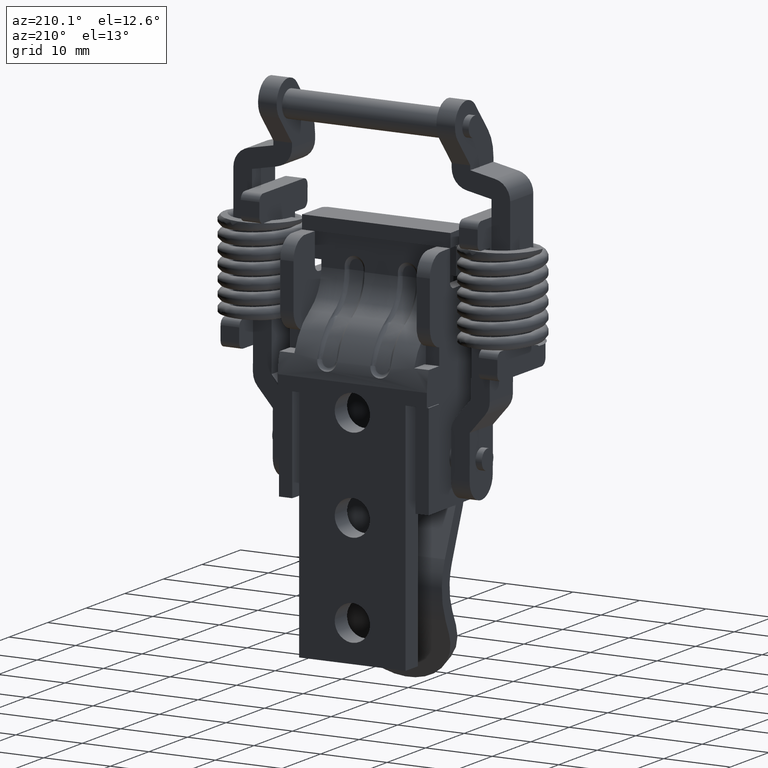
[diagram: clean part render]
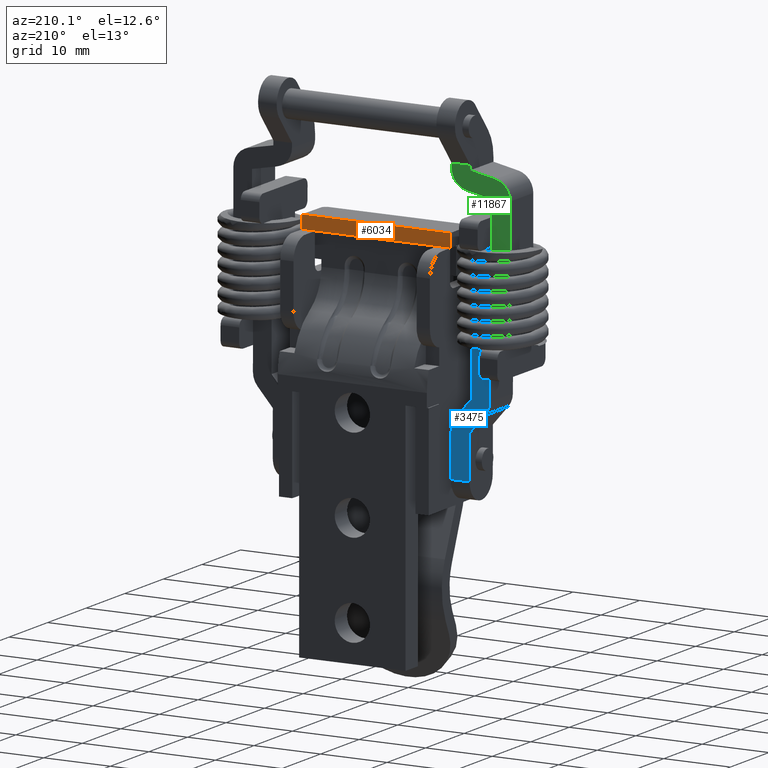
[diagram: same view with three faces highlighted in distinct colors, each labeled with its STEP entity id]
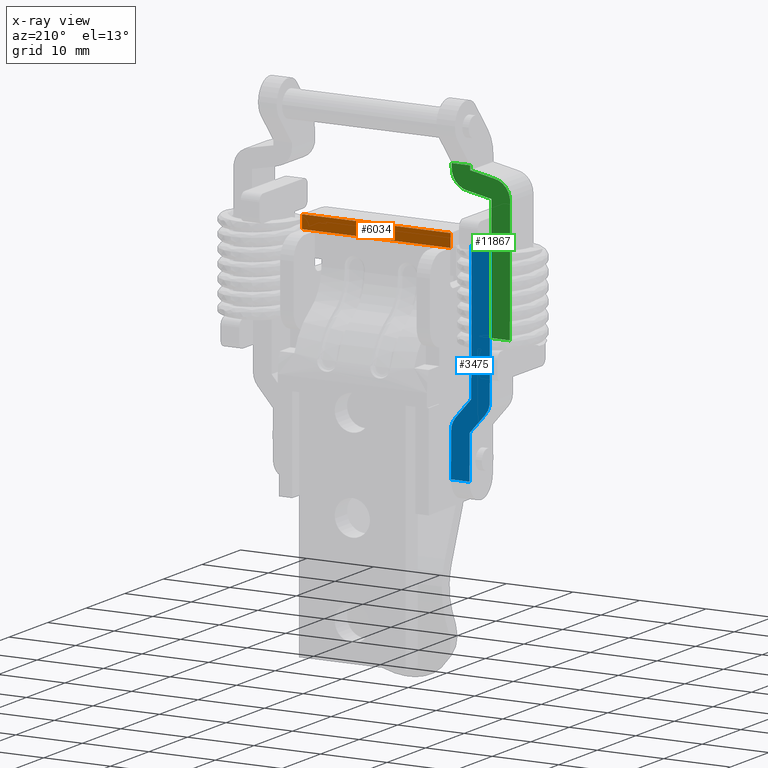
[diagram: x-ray of the same camera — body ghosted, the three highlighted faces saturated]
A machine part, auxiliary view with three faces highlighted in distinct colors.
The next image is the same camera in x-ray (body ghosted, the three faces saturated) — at least one of them is partly hidden behind the body in this view.
Their STEP definitions:

[orange] entity #6034 — the highlighted face is a freeform B-spline surface patch.
#5685=CARTESIAN_POINT('',(-1.700000000000095,11.155198635461939,-17.0));
#5686=VERTEX_POINT('',#5685);
#5687=CARTESIAN_POINT('',(-1.700000000000105,-11.155200410971240,-17.0));
#5688=VERTEX_POINT('',#5687);
#5689=CARTESIAN_POINT('',(-1.700000000000095,11.155198635461939,-17.0));
#5690=CARTESIAN_POINT('',(-1.700000000000105,-11.155200410971240,-17.0));
#5691=QUASI_UNIFORM_CURVE('',1,(#5689,#5690),.UNSPECIFIED.,.F.,.U.);
#5692=EDGE_CURVE('',#5686,#5688,#5691,.T.);
#5812=CARTESIAN_POINT('',(-1.700000000000100,-11.155200410971119,-15.0));
#5813=VERTEX_POINT('',#5812);
#5890=CARTESIAN_POINT('',(-1.700000000000105,-11.155200410971240,-17.0));
#5891=CARTESIAN_POINT('',(-1.700000000000100,-11.155200410971119,-15.0));
#5892=QUASI_UNIFORM_CURVE('',1,(#5890,#5891),.UNSPECIFIED.,.F.,.U.);
#5893=EDGE_CURVE('',#5688,#5813,#5892,.T.);
#5911=CARTESIAN_POINT('',(-1.700000000000100,11.155198635461939,-15.0));
#5912=VERTEX_POINT('',#5911);
#5918=CARTESIAN_POINT('',(-1.700000000000100,11.155198635461939,-15.0));
#5919=CARTESIAN_POINT('',(-1.700000000000095,11.155198635461939,-17.0));
#5920=QUASI_UNIFORM_CURVE('',1,(#5918,#5919),.UNSPECIFIED.,.F.,.U.);
#5921=EDGE_CURVE('',#5912,#5686,#5920,.T.);
#6009=CARTESIAN_POINT('',(-1.700000000000100,11.155198635461939,-15.0));
#6010=CARTESIAN_POINT('',(-1.700000000000100,-11.155200410971119,-15.0));
#6011=QUASI_UNIFORM_CURVE('',1,(#6009,#6010),.UNSPECIFIED.,.F.,.U.);
#6012=EDGE_CURVE('',#5912,#5813,#6011,.T.);
#6023=CARTESIAN_POINT('',(-1.700000000000100,-12.269604381230570,-14.900100003876391));
#6024=CARTESIAN_POINT('',(-1.700000000000100,-12.269604381230570,-17.099900049767790));
#6025=CARTESIAN_POINT('',(-1.700000000000100,12.269603603073829,-14.900100003876391));
#6026=CARTESIAN_POINT('',(-1.700000000000100,12.269603603073829,-17.099900049767790));
#6027=B_SPLINE_SURFACE_WITH_KNOTS('',1,1,((#6023,#6025),(#6024,#6026)),.UNSPECIFIED.,.F.,.F.,.U.,(2,2),(2,2),(0.0,2.199800045891404),(0.0,24.539207984304390),.UNSPECIFIED.);
#6028=ORIENTED_EDGE('',*,*,#5893,.F.);
#6029=ORIENTED_EDGE('',*,*,#5692,.F.);
#6030=ORIENTED_EDGE('',*,*,#5921,.F.);
#6031=ORIENTED_EDGE('',*,*,#6012,.T.);
#6032=EDGE_LOOP('',(#6028,#6029,#6030,#6031));
#6033=FACE_OUTER_BOUND('',#6032,.T.);
#6034=ADVANCED_FACE('',(#6033),#6027,.T.);

[blue] entity #3475 — the highlighted face is a freeform B-spline surface patch.
#3191=CARTESIAN_POINT('',(-0.400000000000205,17.800000000000001,-36.500000000010601));
#3192=VERTEX_POINT('',#3191);
#3193=CARTESIAN_POINT('',(-0.400000000000205,17.113875923421851,-38.336172263273852));
#3194=VERTEX_POINT('',#3193);
#3195=CARTESIAN_POINT('',(-0.400000000000178,17.800000000000001,-36.500000000010601));
#3196=CARTESIAN_POINT('',(-0.400000000000178,17.800000000000004,-37.546278419990912));
#3197=CARTESIAN_POINT('',(-0.400000000000178,17.113875923421869,-38.336172263273873));
#3205=(BOUNDED_CURVE()B_SPLINE_CURVE(2,(#3195,#3196,#3197),.UNSPECIFIED.,.F.,.U.)CURVE()GEOMETRIC_REPRESENTATION_ITEM()QUASI_UNIFORM_CURVE()RATIONAL_B_SPLINE_CURVE((1.0,0.936737873403329,1.0))REPRESENTATION_ITEM(''));
#3206=EDGE_CURVE('',#3192,#3194,#3205,.T.);
#3252=CARTESIAN_POINT('',(-0.400000000000205,12.0,-41.000000000010402));
#3253=VERTEX_POINT('',#3252);
#3254=CARTESIAN_POINT('',(-0.400000000000205,12.686124076578100,-39.163827736747152));
#3255=VERTEX_POINT('',#3254);
#3256=CARTESIAN_POINT('',(-0.400000000000178,12.0,-41.000000000010402));
#3257=CARTESIAN_POINT('',(-0.400000000000178,12.000000000000004,-39.953721580030106));
#3258=CARTESIAN_POINT('',(-0.400000000000178,12.686124076578110,-39.163827736747159));
#3266=(BOUNDED_CURVE()B_SPLINE_CURVE(2,(#3256,#3257,#3258),.UNSPECIFIED.,.F.,.U.)CURVE()GEOMETRIC_REPRESENTATION_ITEM()QUASI_UNIFORM_CURVE()RATIONAL_B_SPLINE_CURVE((1.0,0.936737873403330,1.0))REPRESENTATION_ITEM(''));
#3267=EDGE_CURVE('',#3253,#3255,#3266,.T.);
#3319=CARTESIAN_POINT('',(-0.400000000000205,14.800000000000001,-47.500000000009912));
#3320=VERTEX_POINT('',#3319);
#3336=CARTESIAN_POINT('',(-0.400000000000205,12.0,-47.500000000010502));
#3337=VERTEX_POINT('',#3336);
#3338=CARTESIAN_POINT('',(-0.400000000000205,14.800000000000001,-47.500000000009912));
#3339=CARTESIAN_POINT('',(-0.400000000000205,12.0,-47.500000000010502));
#3340=QUASI_UNIFORM_CURVE('',1,(#3338,#3339),.UNSPECIFIED.,.F.,.U.);
#3341=EDGE_CURVE('',#3320,#3337,#3340,.T.);
#3422=CARTESIAN_POINT('',(-0.400000000000205,18.089709226510980,-14.426575061051810));
#3423=CARTESIAN_POINT('',(-0.400000000000205,11.710289891936331,-14.426575061051810));
#3424=CARTESIAN_POINT('',(-0.400000000000205,18.089709226510980,-49.073425783853793));
#3425=CARTESIAN_POINT('',(-0.400000000000205,11.710289891936331,-49.073425783853793));
#3426=B_SPLINE_SURFACE_WITH_KNOTS('',1,1,((#3422,#3424),(#3423,#3425)),.UNSPECIFIED.,.F.,.F.,.U.,(2,2),(2,2),(0.0,6.379419334574646),(0.0,34.646850722801993),.UNSPECIFIED.);
#3427=CARTESIAN_POINT('',(-0.400000000000205,12.0,-47.500000000010502));
#3428=CARTESIAN_POINT('',(-0.400000000000205,12.0,-41.000000000010402));
#3429=QUASI_UNIFORM_CURVE('',1,(#3427,#3428),.UNSPECIFIED.,.F.,.U.);
#3430=EDGE_CURVE('',#3337,#3253,#3429,.T.);
#3431=ORIENTED_EDGE('',*,*,#3430,.F.);
#3432=ORIENTED_EDGE('',*,*,#3341,.F.);
#3433=CARTESIAN_POINT('',(-0.400000000000178,14.800000000000001,-41.000000000010502));
#3434=VERTEX_POINT('',#3433);
#3435=CARTESIAN_POINT('',(-0.400000000000178,14.800000000000001,-41.000000000010502));
#3436=CARTESIAN_POINT('',(-0.400000000000205,14.800000000000001,-47.500000000009912));
#3437=QUASI_UNIFORM_CURVE('',1,(#3435,#3436),.UNSPECIFIED.,.F.,.U.);
#3438=EDGE_CURVE('',#3434,#3320,#3437,.T.);
#3439=ORIENTED_EDGE('',*,*,#3438,.F.);
#3440=CARTESIAN_POINT('',(-0.400000000000205,17.113875923421851,-38.336172263273852));
#3441=CARTESIAN_POINT('',(-0.400000000000178,14.800000000000001,-41.000000000010502));
#3442=QUASI_UNIFORM_CURVE('',1,(#3440,#3441),.UNSPECIFIED.,.F.,.U.);
#3443=EDGE_CURVE('',#3194,#3434,#3442,.T.);
#3444=ORIENTED_EDGE('',*,*,#3443,.F.);
#3445=ORIENTED_EDGE('',*,*,#3206,.F.);
#3446=CARTESIAN_POINT('',(-0.400000000000178,17.800000000000001,-16.000000000001499));
#3447=VERTEX_POINT('',#3446);
#3448=CARTESIAN_POINT('',(-0.400000000000178,17.800000000000001,-16.000000000001499));
#3449=CARTESIAN_POINT('',(-0.400000000000205,17.800000000000001,-36.500000000010601));
#3450=QUASI_UNIFORM_CURVE('',1,(#3448,#3449),.UNSPECIFIED.,.F.,.U.);
#3451=EDGE_CURVE('',#3447,#3192,#3450,.T.);
#3452=ORIENTED_EDGE('',*,*,#3451,.F.);
#3453=CARTESIAN_POINT('',(-0.400000000000178,15.0,-15.999999999999250));
#3454=VERTEX_POINT('',#3453);
#3455=CARTESIAN_POINT('',(-0.400000000000178,15.0,-15.999999999999250));
#3456=CARTESIAN_POINT('',(-0.400000000000178,17.800000000000001,-16.000000000001499));
#3457=QUASI_UNIFORM_CURVE('',1,(#3455,#3456),.UNSPECIFIED.,.F.,.U.);
#3458=EDGE_CURVE('',#3454,#3447,#3457,.T.);
#3459=ORIENTED_EDGE('',*,*,#3458,.F.);
#3460=CARTESIAN_POINT('',(-0.400000000000178,15.0,-36.500000000010502));
#3461=VERTEX_POINT('',#3460);
#3462=CARTESIAN_POINT('',(-0.400000000000178,15.0,-36.500000000010502));
#3463=CARTESIAN_POINT('',(-0.400000000000178,15.0,-15.999999999999250));
#3464=QUASI_UNIFORM_CURVE('',1,(#3462,#3463),.UNSPECIFIED.,.F.,.U.);
#3465=EDGE_CURVE('',#3461,#3454,#3464,.T.);
#3466=ORIENTED_EDGE('',*,*,#3465,.F.);
#3467=CARTESIAN_POINT('',(-0.400000000000205,12.686124076578100,-39.163827736747152));
#3468=CARTESIAN_POINT('',(-0.400000000000178,15.0,-36.500000000010502));
#3469=QUASI_UNIFORM_CURVE('',1,(#3467,#3468),.UNSPECIFIED.,.F.,.U.);
#3470=EDGE_CURVE('',#3255,#3461,#3469,.T.);
#3471=ORIENTED_EDGE('',*,*,#3470,.F.);
#3472=ORIENTED_EDGE('',*,*,#3267,.F.);
#3473=EDGE_LOOP('',(#3431,#3432,#3439,#3444,#3445,#3452,#3459,#3466,#3471,#3472));
#3474=FACE_OUTER_BOUND('',#3473,.T.);
#3475=ADVANCED_FACE('',(#3474),#3426,.T.);

[green] entity #11867 — the highlighted face is a freeform B-spline surface patch.
#11422=CARTESIAN_POINT('',(-0.580450184411404,20.800000000000001,-28.000000000179149));
#11423=VERTEX_POINT('',#11422);
#11439=CARTESIAN_POINT('',(-0.580450184411404,18.0,-28.000000000179149));
#11440=VERTEX_POINT('',#11439);
#11441=CARTESIAN_POINT('',(-0.580450184411404,18.0,-28.000000000179149));
#11442=CARTESIAN_POINT('',(-0.580450184411404,20.800000000000001,-28.000000000179149));
#11443=QUASI_UNIFORM_CURVE('',1,(#11441,#11442),.UNSPECIFIED.,.F.,.U.);
#11444=EDGE_CURVE('',#11440,#11423,#11443,.T.);
#11561=CARTESIAN_POINT('',(-0.580450184411441,18.552326013768301,-6.755016216166080));
#11562=VERTEX_POINT('',#11561);
#11568=CARTESIAN_POINT('',(-0.580450184411404,20.800000000000001,-9.500000000182821));
#11569=VERTEX_POINT('',#11568);
#11570=CARTESIAN_POINT('',(-0.580450184411404,20.800000000000001,-9.500000000182821));
#11571=CARTESIAN_POINT('',(-0.580450184411404,20.799999999999994,-7.207277107576328));
#11572=CARTESIAN_POINT('',(-0.580450184411404,18.552326013768301,-6.755016216166087));
#11580=(BOUNDED_CURVE()B_SPLINE_CURVE(2,(#11570,#11571,#11572),.UNSPECIFIED.,.F.,.U.)CURVE()GEOMETRIC_REPRESENTATION_ITEM()QUASI_UNIFORM_CURVE()RATIONAL_B_SPLINE_CURVE((1.0,0.773711603451679,1.0))REPRESENTATION_ITEM(''));
#11581=EDGE_CURVE('',#11569,#11562,#11580,.T.);
#11622=CARTESIAN_POINT('',(-0.580450184411441,14.247673986232099,-8.744983784200191));
#11623=VERTEX_POINT('',#11622);
#11629=CARTESIAN_POINT('',(-0.580450184411404,12.0,-6.000000000183380));
#11630=VERTEX_POINT('',#11629);
#11631=CARTESIAN_POINT('',(-0.580450184411404,12.0,-6.000000000183380));
#11632=CARTESIAN_POINT('',(-0.580450184411441,11.999999999999998,-8.292722892790213));
#11633=CARTESIAN_POINT('',(-0.580450184411441,14.247673986232099,-8.744983784200192));
#11641=(BOUNDED_CURVE()B_SPLINE_CURVE(2,(#11631,#11632,#11633),.UNSPECIFIED.,.F.,.U.)CURVE()GEOMETRIC_REPRESENTATION_ITEM()QUASI_UNIFORM_CURVE()RATIONAL_B_SPLINE_CURVE((1.0,0.773711603451633,1.0))REPRESENTATION_ITEM(''));
#11642=EDGE_CURVE('',#11630,#11623,#11641,.T.);
#11814=CARTESIAN_POINT('',(-0.580450184411404,11.560440079935670,-4.228003212104276));
#11815=CARTESIAN_POINT('',(-0.580450184411404,11.560440079935670,-29.130922266283431));
#11816=CARTESIAN_POINT('',(-0.580450184411404,21.239558897248632,-4.228003212104276));
#11817=CARTESIAN_POINT('',(-0.580450184411404,21.239558897248632,-29.130922266283431));
#11818=B_SPLINE_SURFACE_WITH_KNOTS('',1,1,((#11814,#11816),(#11815,#11817)),.UNSPECIFIED.,.F.,.F.,.U.,(2,2),(2,2),(0.0,24.902919054179151),(0.0,9.679118817312959),.UNSPECIFIED.);
#11819=CARTESIAN_POINT('',(-0.580450184411441,18.0,-9.500000000182789));
#11820=VERTEX_POINT('',#11819);
#11821=CARTESIAN_POINT('',(-0.580450184411404,18.0,-28.000000000179149));
#11822=CARTESIAN_POINT('',(-0.580450184411441,18.0,-9.500000000182789));
#11823=QUASI_UNIFORM_CURVE('',1,(#11821,#11822),.UNSPECIFIED.,.F.,.U.);
#11824=EDGE_CURVE('',#11440,#11820,#11823,.T.);
#11825=ORIENTED_EDGE('',*,*,#11824,.F.);
#11826=ORIENTED_EDGE('',*,*,#11444,.T.);
#11827=CARTESIAN_POINT('',(-0.580450184411404,20.800000000000001,-28.000000000179149));
#11828=CARTESIAN_POINT('',(-0.580450184411404,20.800000000000001,-9.500000000182821));
#11829=QUASI_UNIFORM_CURVE('',1,(#11827,#11828),.UNSPECIFIED.,.F.,.U.);
#11830=EDGE_CURVE('',#11423,#11569,#11829,.T.);
#11831=ORIENTED_EDGE('',*,*,#11830,.T.);
#11832=ORIENTED_EDGE('',*,*,#11581,.T.);
#11833=CARTESIAN_POINT('',(-0.580450184411441,14.800000000000001,-6.000000000182791));
#11834=VERTEX_POINT('',#11833);
#11835=CARTESIAN_POINT('',(-0.580450184411441,18.552326013768301,-6.755016216166080));
#11836=CARTESIAN_POINT('',(-0.580450184411441,14.800000000000001,-6.000000000182791));
#11837=QUASI_UNIFORM_CURVE('',1,(#11835,#11836),.UNSPECIFIED.,.F.,.U.);
#11838=EDGE_CURVE('',#11562,#11834,#11837,.T.);
#11839=ORIENTED_EDGE('',*,*,#11838,.T.);
#11840=CARTESIAN_POINT('',(-0.580450184411404,14.800000000000001,-5.358925073354580));
#11841=VERTEX_POINT('',#11840);
#11842=CARTESIAN_POINT('',(-0.580450184411441,14.800000000000001,-6.000000000182791));
#11843=CARTESIAN_POINT('',(-0.580450184411404,14.800000000000001,-5.358925073354580));
#11844=QUASI_UNIFORM_CURVE('',1,(#11842,#11843),.UNSPECIFIED.,.F.,.U.);
#11845=EDGE_CURVE('',#11834,#11841,#11844,.T.);
#11846=ORIENTED_EDGE('',*,*,#11845,.T.);
#11847=CARTESIAN_POINT('',(-0.580450184411404,12.0,-5.358925073354580));
#11848=VERTEX_POINT('',#11847);
#11849=CARTESIAN_POINT('',(-0.580450184411404,14.800000000000001,-5.358925073354580));
#11850=CARTESIAN_POINT('',(-0.580450184411404,12.0,-5.358925073354580));
#11851=QUASI_UNIFORM_CURVE('',1,(#11849,#11850),.UNSPECIFIED.,.F.,.U.);
#11852=EDGE_CURVE('',#11841,#11848,#11851,.T.);
#11853=ORIENTED_EDGE('',*,*,#11852,.T.);
#11854=CARTESIAN_POINT('',(-0.580450184411404,12.0,-6.000000000183380));
#11855=CARTESIAN_POINT('',(-0.580450184411404,12.0,-5.358925073354580));
#11856=QUASI_UNIFORM_CURVE('',1,(#11854,#11855),.UNSPECIFIED.,.F.,.U.);
#11857=EDGE_CURVE('',#11630,#11848,#11856,.T.);
#11858=ORIENTED_EDGE('',*,*,#11857,.F.);
#11859=ORIENTED_EDGE('',*,*,#11642,.T.);
#11860=CARTESIAN_POINT('',(-0.580450184411441,14.247673986232099,-8.744983784200191));
#11861=CARTESIAN_POINT('',(-0.580450184411441,18.0,-9.500000000182789));
#11862=QUASI_UNIFORM_CURVE('',1,(#11860,#11861),.UNSPECIFIED.,.F.,.U.);
#11863=EDGE_CURVE('',#11623,#11820,#11862,.T.);
#11864=ORIENTED_EDGE('',*,*,#11863,.T.);
#11865=EDGE_LOOP('',(#11825,#11826,#11831,#11832,#11839,#11846,#11853,#11858,#11859,#11864));
#11866=FACE_OUTER_BOUND('',#11865,.T.);
#11867=ADVANCED_FACE('',(#11866),#11818,.T.);